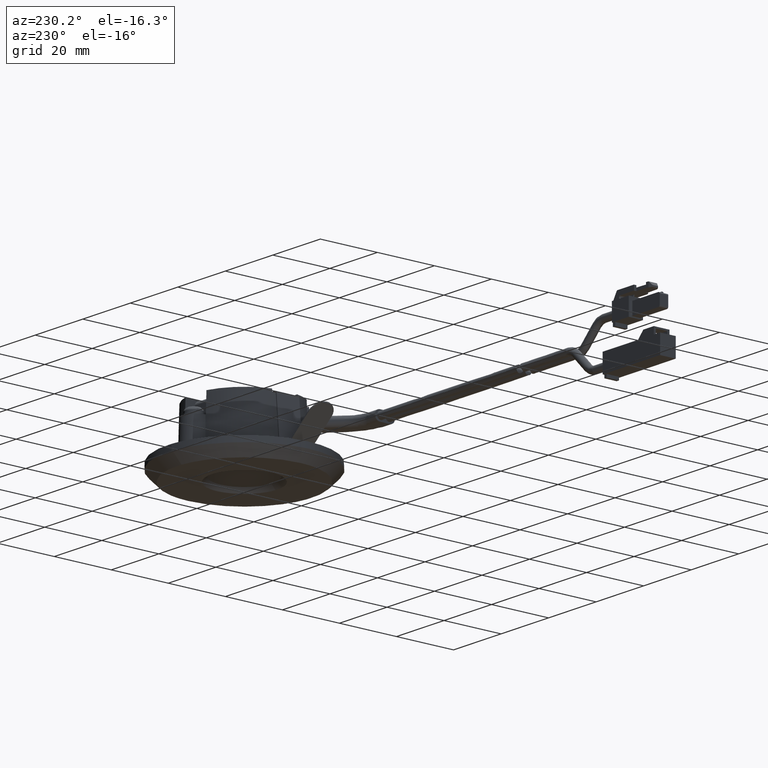
[diagram: clean part render]
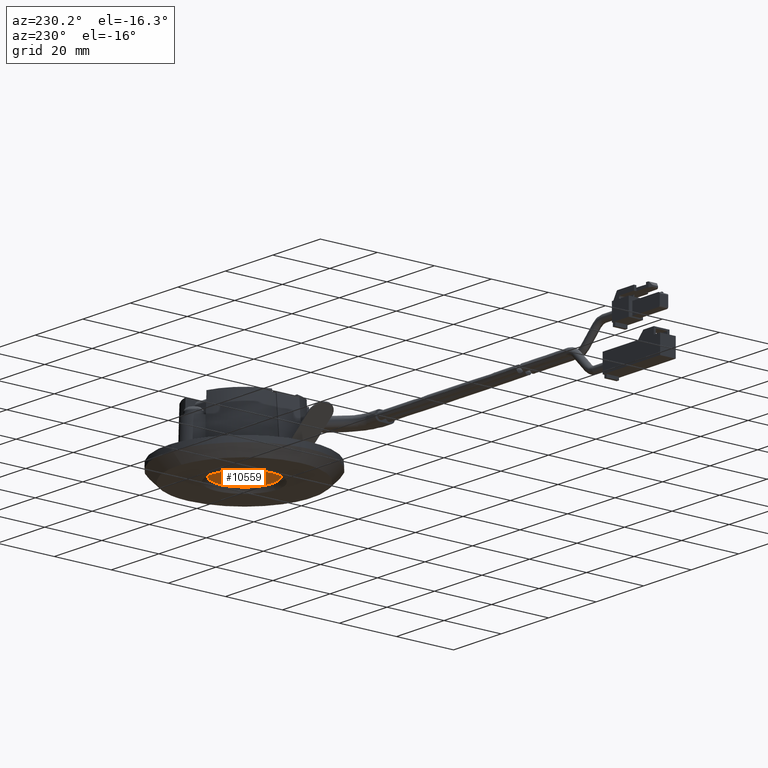
[diagram: same view with one face highlighted and labeled with its STEP entity id]
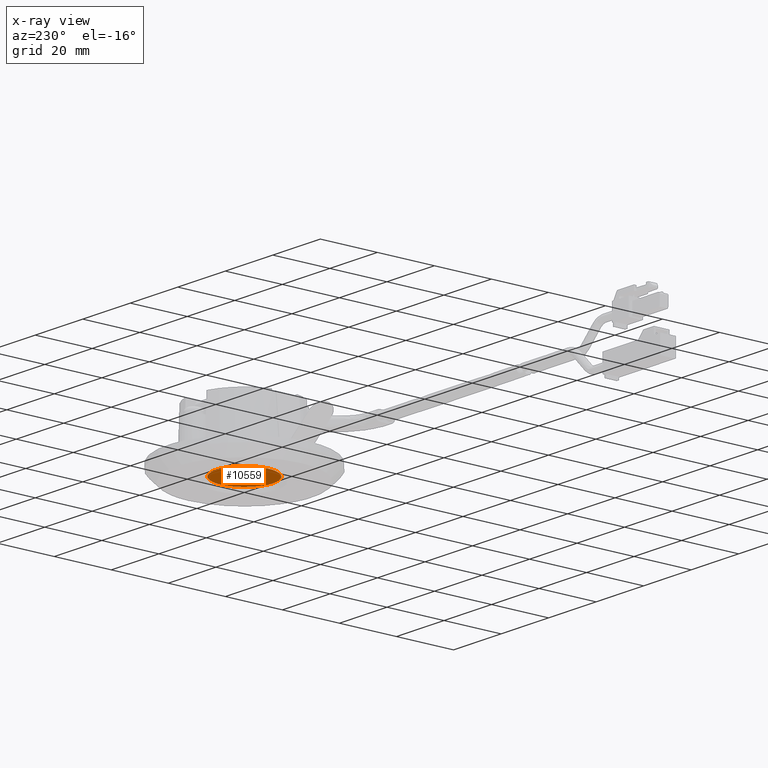
[diagram: x-ray of the same camera — body ghosted, the highlighted face saturated]
A machine part, auxiliary view. The second image highlights one B-rep face of the part: STEP entity #10559.
The next image is the same camera in x-ray: the body ghosted, the highlighted face saturated — about 0% of this face is hidden behind the body in this view.
In plain terms, the highlighted face is a freeform B-spline surface patch.
Its self-contained STEP definition (entity closure, byte-faithful):
#10488=CARTESIAN_POINT('',(-10.998999961241140,-10.998753685351060,1.499999999998340));
#10489=CARTESIAN_POINT('',(10.999000497683280,-10.998753685351060,1.499999999998340));
#10490=CARTESIAN_POINT('',(-10.998999961241140,10.998753506537129,1.499999999998340));
#10491=CARTESIAN_POINT('',(10.999000497683280,10.998753506537129,1.499999999998340));
#10492=B_SPLINE_SURFACE_WITH_KNOTS('',1,1,((#10488,#10490),(#10489,#10491)),.UNSPECIFIED.,.F.,.F.,.U.,(2,2),(2,2),(0.0,21.998000458924420),(0.0,21.997507191888189),.UNSPECIFIED.);
#10493=CARTESIAN_POINT('',(-10.000000000004549,0.0,1.499999999998340));
#10494=VERTEX_POINT('',#10493);
#10495=CARTESIAN_POINT('',(-0.610485396922754,9.981347984335166,1.499999999790665));
#10496=VERTEX_POINT('',#10495);
#10497=CARTESIAN_POINT('',(-10.000000000004549,0.0,1.499999999998340));
#10498=CARTESIAN_POINT('',(-10.000000000010889,9.407060667690727,1.499999999894502));
#10499=CARTESIAN_POINT('',(-0.610485396922754,9.981347984335166,1.499999999790665));
#10507=(BOUNDED_CURVE()B_SPLINE_CURVE(2,(#10497,#10498,#10499),.UNSPECIFIED.,.F.,.U.)B_SPLINE_CURVE_WITH_KNOTS((3,3),(0.0,0.239332962214977),.UNSPECIFIED.)CURVE()GEOMETRIC_REPRESENTATION_ITEM()RATIONAL_B_SPLINE_CURVE((1.0,0.719603993314788,0.976072041615354))REPRESENTATION_ITEM(''));
#10508=EDGE_CURVE('',#10494,#10496,#10507,.T.);
#10509=ORIENTED_EDGE('',*,*,#10508,.T.);
#10510=CARTESIAN_POINT('',(10.000000000004890,0.0,1.499999999998340));
#10511=VERTEX_POINT('',#10510);
#10512=CARTESIAN_POINT('',(-0.610485396922754,9.981347984335166,1.499999999790665));
#10513=CARTESIAN_POINT('',(-0.305527633781242,10.000000000209026,1.499999999793649));
#10514=CARTESIAN_POINT('',(-1.213168E-011,10.000000000205860,1.499999999796821));
#10515=CARTESIAN_POINT('',(9.999999999998929,10.000000000102217,1.499999999900660));
#10516=CARTESIAN_POINT('',(10.000000000004890,0.0,1.499999999998340));
#10524=(BOUNDED_CURVE()B_SPLINE_CURVE(2,(#10512,#10513,#10514,#10515,#10516),.UNSPECIFIED.,.F.,.U.)B_SPLINE_CURVE_WITH_KNOTS((3,2,3),(0.239332962214977,0.250000000000000,0.500000000000000),.UNSPECIFIED.)CURVE()GEOMETRIC_REPRESENTATION_ITEM()RATIONAL_B_SPLINE_CURVE((0.976072041615354,0.987502787871759,1.0,0.707106781186548,1.0))REPRESENTATION_ITEM(''));
#10525=EDGE_CURVE('',#10496,#10511,#10524,.T.);
#10526=ORIENTED_EDGE('',*,*,#10525,.T.);
#10527=CARTESIAN_POINT('',(0.610485396923096,-9.981347984335166,1.499999999790665));
#10528=VERTEX_POINT('',#10527);
#10529=CARTESIAN_POINT('',(10.000000000004890,0.0,1.499999999998340));
#10530=CARTESIAN_POINT('',(10.000000000011230,-9.407060667690727,1.499999999894502));
#10531=CARTESIAN_POINT('',(0.610485396923096,-9.981347984335166,1.499999999790665));
#10539=(BOUNDED_CURVE()B_SPLINE_CURVE(2,(#10529,#10530,#10531),.UNSPECIFIED.,.F.,.U.)B_SPLINE_CURVE_WITH_KNOTS((3,3),(0.500000000000000,0.739332962214977),.UNSPECIFIED.)CURVE()GEOMETRIC_REPRESENTATION_ITEM()RATIONAL_B_SPLINE_CURVE((1.0,0.719603993314788,0.976072041615354))REPRESENTATION_ITEM(''));
#10540=EDGE_CURVE('',#10511,#10528,#10539,.T.);
#10541=ORIENTED_EDGE('',*,*,#10540,.T.);
#10542=CARTESIAN_POINT('',(0.610485396923096,-9.981347984335166,1.499999999790665));
#10543=CARTESIAN_POINT('',(0.305527633781584,-10.000000000209026,1.499999999793649));
#10544=CARTESIAN_POINT('',(1.247382E-011,-10.000000000205860,1.499999999796821));
#10545=CARTESIAN_POINT('',(-9.999999999998586,-10.000000000102217,1.499999999900660));
#10546=CARTESIAN_POINT('',(-10.000000000004549,0.0,1.499999999998340));
#10554=(BOUNDED_CURVE()B_SPLINE_CURVE(2,(#10542,#10543,#10544,#10545,#10546),.UNSPECIFIED.,.F.,.U.)B_SPLINE_CURVE_WITH_KNOTS((3,2,3),(0.739332962214977,0.750000000000000,1.0),.UNSPECIFIED.)CURVE()GEOMETRIC_REPRESENTATION_ITEM()RATIONAL_B_SPLINE_CURVE((0.976072041615354,0.987502787871759,1.0,0.707106781186548,1.0))REPRESENTATION_ITEM(''));
#10555=EDGE_CURVE('',#10528,#10494,#10554,.T.);
#10556=ORIENTED_EDGE('',*,*,#10555,.T.);
#10557=EDGE_LOOP('',(#10509,#10526,#10541,#10556));
#10558=FACE_OUTER_BOUND('',#10557,.T.);
#10559=ADVANCED_FACE('',(#10558),#10492,.F.);